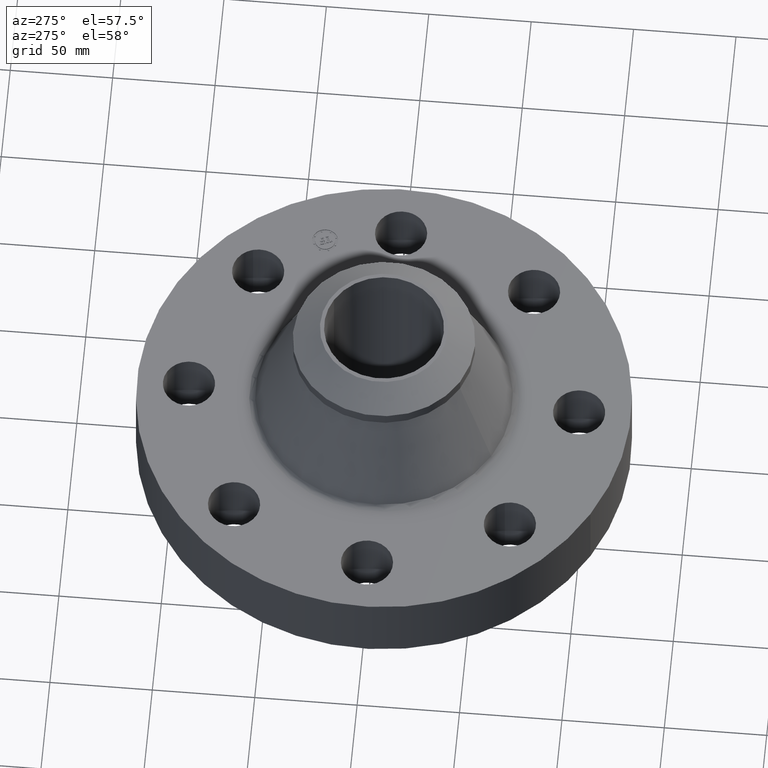
[diagram: clean part render]
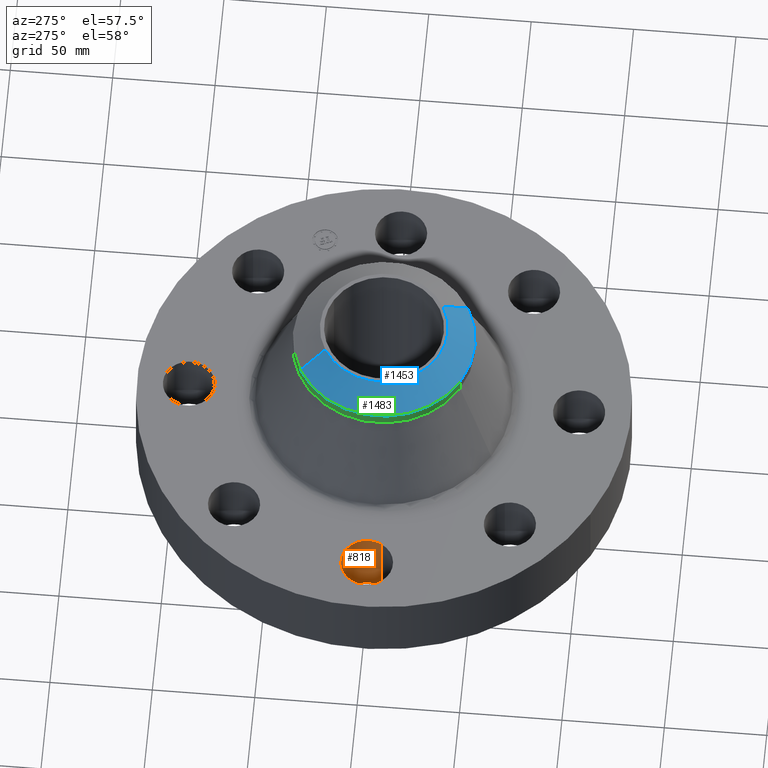
[diagram: same view with three faces highlighted in distinct colors, each labeled with its STEP entity id]
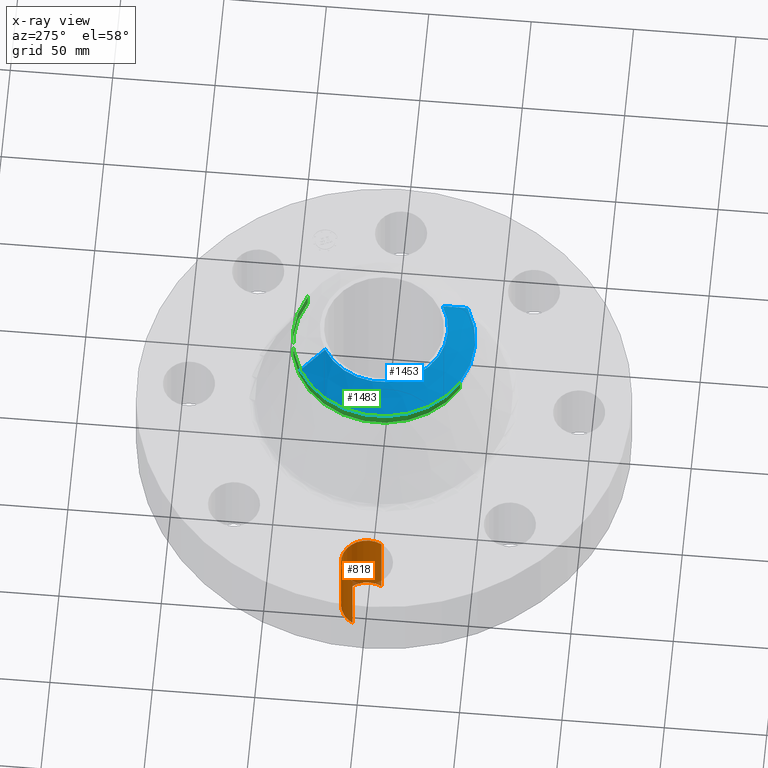
[diagram: x-ray of the same camera — body ghosted, the three highlighted faces saturated]
A machine part, auxiliary view with three faces highlighted in distinct colors.
The next image is the same camera in x-ray (body ghosted, the three faces saturated) — at least one of them is partly hidden behind the body in this view.
Their STEP definitions:

[orange] entity #818 — the highlighted cylindrical surface (edge-blend (fillet) strip) has radius 12.7 mm, axis along (0, 0, -1).
#246=AXIS2_PLACEMENT_3D('Circle Axis2P3D',#244,#245,$) ;
#416=AXIS2_PLACEMENT_3D('Circle Axis2P3D',#414,#415,$) ;
#810=AXIS2_PLACEMENT_3D('Cylinder Axis2P3D',#807,#808,#809) ;
#239=CARTESIAN_POINT('Vertex',(-3.31120871909,-0.239712769333,0.)) ;
#241=CARTESIAN_POINT('Vertex',(-4.18879128098,0.239712769336,0.)) ;
#244=CARTESIAN_POINT('Axis2P3D Location',(-3.75000000004,1.46682316337E-012,0.)) ;
#414=CARTESIAN_POINT('Axis2P3D Location',(-3.75000000004,-7.47804268202E-012,1.50000000001)) ;
#418=CARTESIAN_POINT('Vertex',(-4.18879128098,0.239712769303,1.50000000001)) ;
#420=CARTESIAN_POINT('Vertex',(-3.31120871907,-0.239712769303,1.49999999999)) ;
#783=CARTESIAN_POINT('Line Origine',(-3.31120871907,-0.239712769303,0.750000000005)) ;
#788=CARTESIAN_POINT('Line Origine',(-4.18879128097,0.239712769303,0.750000000005)) ;
#807=CARTESIAN_POINT('Axis2P3D Location',(-3.75000000002,-4.59242549682E-016,1.49606299213)) ;
#245=DIRECTION('Axis2P3D Direction',(0.,0.,-0.0393700787402)) ;
#415=DIRECTION('Axis2P3D Direction',(0.,0.,-0.0393700787402)) ;
#784=DIRECTION('Vector Direction',(0.,0.,-0.0393700787402)) ;
#789=DIRECTION('Vector Direction',(0.,0.,-0.0393700787402)) ;
#808=DIRECTION('Axis2P3D Direction',(0.,0.,-0.0393700787402)) ;
#809=DIRECTION('Axis2P3D XDirection',(-0.0345504945626,0.0188750212049,0.)) ;
#785=VECTOR('Line Direction',#784,0.0393700787402) ;
#790=VECTOR('Line Direction',#789,0.0393700787402) ;
#813=ORIENTED_EDGE('',*,*,#792,.F.) ;
#814=ORIENTED_EDGE('',*,*,#248,.T.) ;
#815=ORIENTED_EDGE('',*,*,#787,.T.) ;
#816=ORIENTED_EDGE('',*,*,#422,.F.) ;
#818=ADVANCED_FACE('PartBody',(#817),#811,.F.) ;
#247=CIRCLE('generated circle',#246,0.500000000013) ;
#417=CIRCLE('generated circle',#416,0.499999999995) ;
#811=CYLINDRICAL_SURFACE('generated cylinder',#810,0.500000000002) ;
#248=EDGE_CURVE('',#242,#240,#247,.T.) ;
#422=EDGE_CURVE('',#419,#421,#417,.T.) ;
#787=EDGE_CURVE('',#240,#421,#786,.F.) ;
#792=EDGE_CURVE('',#242,#419,#791,.F.) ;
#812=EDGE_LOOP('',(#813,#814,#815,#816)) ;
#817=FACE_OUTER_BOUND('',#812,.T.) ;
#786=LINE('Line',#783,#785) ;
#791=LINE('Line',#788,#790) ;
#240=VERTEX_POINT('',#239) ;
#242=VERTEX_POINT('',#241) ;
#419=VERTEX_POINT('',#418) ;
#421=VERTEX_POINT('',#420) ;

[blue] entity #1453 — the highlighted conical surface has half-angle 52.5 deg.
#1123=AXIS2_PLACEMENT_3D('Circle Axis2P3D',#1121,#1122,$) ;
#1432=AXIS2_PLACEMENT_3D('Cone Axis2P3D',#1429,#1430,#1431) ;
#1436=AXIS2_PLACEMENT_3D('Circle Axis2P3D',#1434,#1435,$) ;
#1443=AXIS2_PLACEMENT_3D('Circle Axis2P3D',#1441,#1442,$) ;
#1116=CARTESIAN_POINT('Vertex',(0.589089411806,-1.0783209353,4.00000000002)) ;
#1118=CARTESIAN_POINT('Vertex',(-0.589089411806,1.0783209353,4.00000000002)) ;
#1121=CARTESIAN_POINT('Axis2P3D Location',(-4.36653687836E-011,-2.11876011049E-011,4.00000000002)) ;
#1388=CARTESIAN_POINT('Line Origine',(-0.714042052183,1.30704520931,3.80001162756)) ;
#1392=CARTESIAN_POINT('Vertex',(-0.838994692564,1.53576948332,3.60002325508)) ;
#1395=CARTESIAN_POINT('Line Origine',(0.714042052183,-1.30704520931,3.80001162756)) ;
#1399=CARTESIAN_POINT('Vertex',(0.838994692564,-1.53576948332,3.60002325508)) ;
#1429=CARTESIAN_POINT('Axis2P3D Location',(0.,0.,4.00000000002)) ;
#1434=CARTESIAN_POINT('Axis2P3D Location',(0.,0.,3.6000232551)) ;
#1438=CARTESIAN_POINT('Vertex',(-0.838994692563,-1.53576948332,3.60002325508)) ;
#1441=CARTESIAN_POINT('Axis2P3D Location',(0.,0.,3.6000232551)) ;
#1122=DIRECTION('Axis2P3D Direction',(0.,0.,-0.0393700787402)) ;
#1389=DIRECTION('Vector Direction',(-0.014974561121,0.02741075027,-0.023966985394)) ;
#1396=DIRECTION('Vector Direction',(0.014974561121,-0.02741075027,-0.023966985394)) ;
#1430=DIRECTION('Axis2P3D Direction',(-0.,-0.,-0.0393700787402)) ;
#1431=DIRECTION('Axis2P3D XDirection',(0.0188750212049,-0.0345504945626,0.)) ;
#1435=DIRECTION('Axis2P3D Direction',(-0.,0.,-0.0393700787402)) ;
#1442=DIRECTION('Axis2P3D Direction',(-0.,0.,-0.0393700787402)) ;
#1390=VECTOR('Line Direction',#1389,0.0393700787402) ;
#1397=VECTOR('Line Direction',#1396,0.0393700787402) ;
#1447=ORIENTED_EDGE('',*,*,#1401,.F.) ;
#1448=ORIENTED_EDGE('',*,*,#1125,.F.) ;
#1449=ORIENTED_EDGE('',*,*,#1394,.T.) ;
#1450=ORIENTED_EDGE('',*,*,#1440,.T.) ;
#1451=ORIENTED_EDGE('',*,*,#1445,.F.) ;
#1453=ADVANCED_FACE('PartBody',(#1452),#1433,.T.) ;
#1124=CIRCLE('generated circle',#1123,1.22874015747) ;
#1437=CIRCLE('generated circle',#1436,1.75000000001) ;
#1444=CIRCLE('generated circle',#1443,1.75000000001) ;
#1433=CONICAL_SURFACE('Cone',#1432,1.22874015748,0.916297857297) ;
#1125=EDGE_CURVE('',#1119,#1117,#1124,.F.) ;
#1394=EDGE_CURVE('',#1119,#1393,#1391,.T.) ;
#1401=EDGE_CURVE('',#1117,#1400,#1398,.T.) ;
#1440=EDGE_CURVE('',#1393,#1439,#1437,.F.) ;
#1445=EDGE_CURVE('',#1400,#1439,#1444,.T.) ;
#1446=EDGE_LOOP('',(#1447,#1448,#1449,#1450,#1451)) ;
#1452=FACE_OUTER_BOUND('',#1446,.T.) ;
#1391=LINE('Line',#1388,#1390) ;
#1398=LINE('Line',#1395,#1397) ;
#1117=VERTEX_POINT('',#1116) ;
#1119=VERTEX_POINT('',#1118) ;
#1393=VERTEX_POINT('',#1392) ;
#1400=VERTEX_POINT('',#1399) ;
#1439=VERTEX_POINT('',#1438) ;

[green] entity #1483 — the highlighted cylindrical surface (partial cylindrical patch) has radius 44.45 mm, axis along (-0, 0, -1).
#1156=AXIS2_PLACEMENT_3D('Circle Axis2P3D',#1154,#1155,$) ;
#1411=AXIS2_PLACEMENT_3D('Circle Axis2P3D',#1409,#1410,$) ;
#1436=AXIS2_PLACEMENT_3D('Circle Axis2P3D',#1434,#1435,$) ;
#1464=AXIS2_PLACEMENT_3D('Cylinder Axis2P3D',#1461,#1462,#1463) ;
#1151=CARTESIAN_POINT('Vertex',(-0.838994692563,-1.53576948332,3.36380278266)) ;
#1154=CARTESIAN_POINT('Axis2P3D Location',(0.,0.,3.36380278266)) ;
#1158=CARTESIAN_POINT('Vertex',(0.838994692562,1.53576948332,3.36380278266)) ;
#1392=CARTESIAN_POINT('Vertex',(-0.838994692564,1.53576948332,3.60002325508)) ;
#1406=CARTESIAN_POINT('Vertex',(0.838994692563,1.53576948332,3.60002325508)) ;
#1409=CARTESIAN_POINT('Axis2P3D Location',(0.,0.,3.6000232551)) ;
#1434=CARTESIAN_POINT('Axis2P3D Location',(0.,0.,3.6000232551)) ;
#1438=CARTESIAN_POINT('Vertex',(-0.838994692563,-1.53576948332,3.60002325508)) ;
#1461=CARTESIAN_POINT('Axis2P3D Location',(0.,0.,2.00000000001)) ;
#1466=CARTESIAN_POINT('Line Origine',(0.838994692563,1.53576948332,3.48191301887)) ;
#1471=CARTESIAN_POINT('Line Origine',(-0.838994692563,-1.53576948332,3.48191301887)) ;
#1155=DIRECTION('Axis2P3D Direction',(-0.,0.,-0.0393700787402)) ;
#1410=DIRECTION('Axis2P3D Direction',(-0.,0.,-0.0393700787402)) ;
#1435=DIRECTION('Axis2P3D Direction',(-0.,0.,-0.0393700787402)) ;
#1462=DIRECTION('Axis2P3D Direction',(-0.,0.,-0.0393700787402)) ;
#1463=DIRECTION('Axis2P3D XDirection',(-0.0188750212049,-0.0345504945626,0.)) ;
#1467=DIRECTION('Vector Direction',(0.,0.,-0.0393700787402)) ;
#1472=DIRECTION('Vector Direction',(0.,0.,-0.0393700787402)) ;
#1468=VECTOR('Line Direction',#1467,0.0393700787402) ;
#1473=VECTOR('Line Direction',#1472,0.0393700787402) ;
#1477=ORIENTED_EDGE('',*,*,#1470,.F.) ;
#1478=ORIENTED_EDGE('',*,*,#1160,.F.) ;
#1479=ORIENTED_EDGE('',*,*,#1475,.T.) ;
#1480=ORIENTED_EDGE('',*,*,#1440,.F.) ;
#1481=ORIENTED_EDGE('',*,*,#1413,.T.) ;
#1483=ADVANCED_FACE('PartBody',(#1482),#1465,.T.) ;
#1157=CIRCLE('generated circle',#1156,1.75000000001) ;
#1412=CIRCLE('generated circle',#1411,1.75000000001) ;
#1437=CIRCLE('generated circle',#1436,1.75000000001) ;
#1465=CYLINDRICAL_SURFACE('generated cylinder',#1464,1.75000000001) ;
#1160=EDGE_CURVE('',#1152,#1159,#1157,.T.) ;
#1413=EDGE_CURVE('',#1393,#1407,#1412,.T.) ;
#1440=EDGE_CURVE('',#1393,#1439,#1437,.F.) ;
#1470=EDGE_CURVE('',#1159,#1407,#1469,.F.) ;
#1475=EDGE_CURVE('',#1152,#1439,#1474,.F.) ;
#1476=EDGE_LOOP('',(#1477,#1478,#1479,#1480,#1481)) ;
#1482=FACE_OUTER_BOUND('',#1476,.T.) ;
#1469=LINE('Line',#1466,#1468) ;
#1474=LINE('Line',#1471,#1473) ;
#1152=VERTEX_POINT('',#1151) ;
#1159=VERTEX_POINT('',#1158) ;
#1393=VERTEX_POINT('',#1392) ;
#1407=VERTEX_POINT('',#1406) ;
#1439=VERTEX_POINT('',#1438) ;